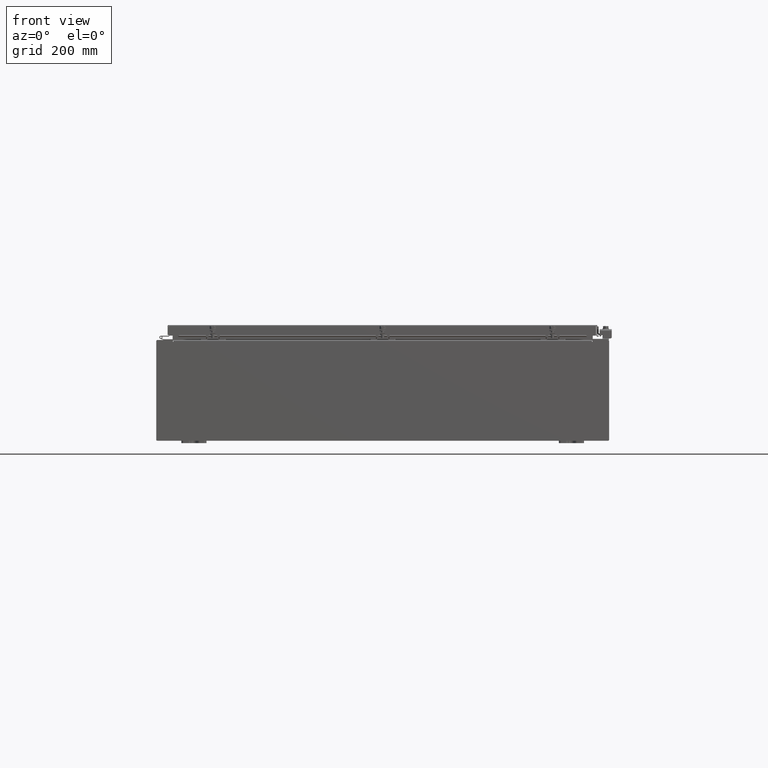
[diagram: clean part render]
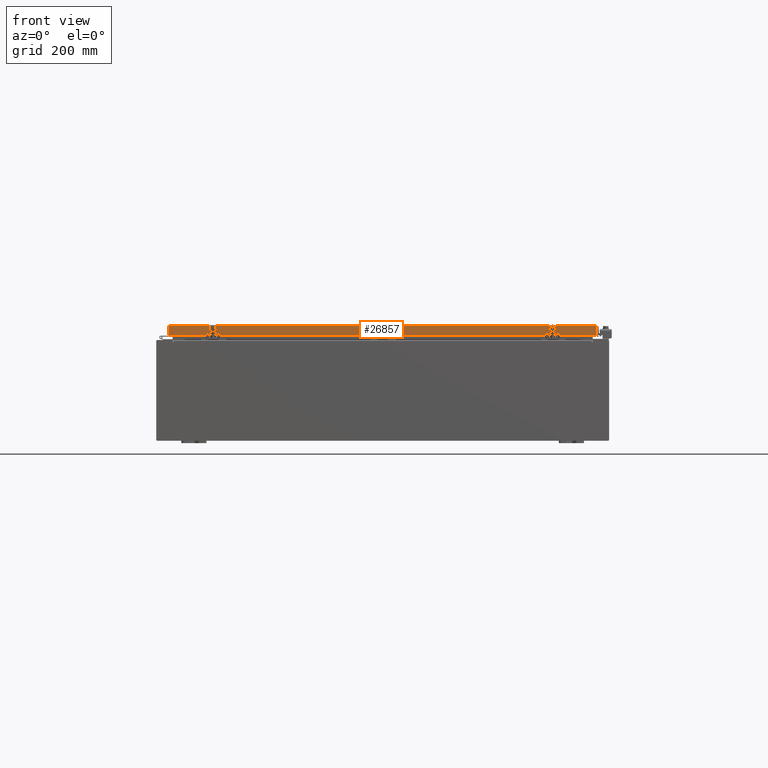
[diagram: same view with one face highlighted and labeled with its STEP entity id]
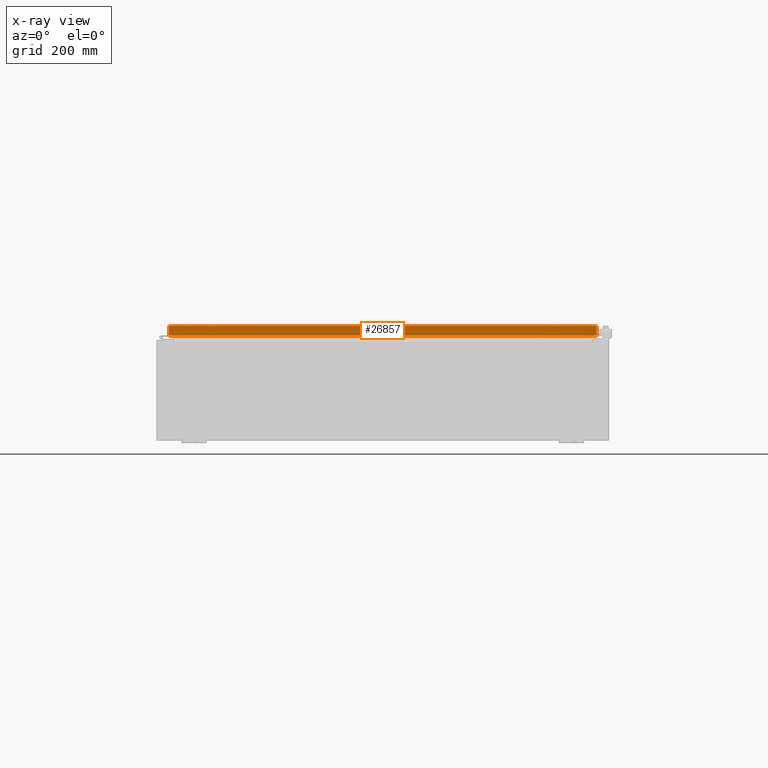
[diagram: x-ray of the same camera — body ghosted, the highlighted face saturated]
A machine part, front view. The second image highlights one B-rep face of the part: STEP entity #26857.
The next image is the same camera in x-ray: the body ghosted, the highlighted face saturated — about 0% of this face is hidden behind the body in this view.
In plain terms, the highlighted planar face has unit normal (-0, 1, -0).
Its self-contained STEP definition (entity closure, byte-faithful):
#170 = EDGE_CURVE ( 'NONE', #44706, #45521, #29061, .T. ) ;
#4046 = LINE ( 'NONE', #44004, #32891 ) ;
#6528 = CARTESIAN_POINT ( 'NONE',  ( 16.98915786437627100, -20.09400000000000100, -0.07469999999999907300 ) ) ;
#8220 = LINE ( 'NONE', #39744, #46334 ) ;
#8756 = CARTESIAN_POINT ( 'NONE',  ( -16.98915786437626700, -20.09400000000000800, -0.8499999999999955400 ) ) ;
#8834 = VECTOR ( 'NONE', #14553, 39.37007874015748100 ) ;
#9175 = CARTESIAN_POINT ( 'NONE',  ( -16.98915786437626700, -20.09400000000000100, -0.08769999999999589200 ) ) ;
#9329 = ORIENTED_EDGE ( 'NONE', *, *, #170, .F. ) ;
#10556 = VERTEX_POINT ( 'NONE', #38619 ) ;
#10958 = PLANE ( 'NONE',  #32128 ) ;
#10990 = CARTESIAN_POINT ( 'NONE',  ( 16.98915786437627100, -20.09400000000000800, -0.8499999999999999800 ) ) ;
#11208 = EDGE_LOOP ( 'NONE', ( #28838, #39534, #9329, #46235, #28802, #26408 ) ) ;
#14553 = DIRECTION ( 'NONE',  ( -0.0000000000000000000, -5.637761885544720300E-015, -1.000000000000000000 ) ) ;
#14904 = DIRECTION ( 'NONE',  ( 0.0000000000000000000, 5.637761885544720300E-015, 1.000000000000000000 ) ) ;
#15344 = DIRECTION ( 'NONE',  ( -1.000000000000000000, -8.758115402030108600E-047, 1.239713195391617400E-016 ) ) ;
#15721 = VERTEX_POINT ( 'NONE', #9175 ) ;
#15770 = CARTESIAN_POINT ( 'NONE',  ( 17.07799999999999900, -20.09400000000000100, -0.08769999999999589200 ) ) ;
#16183 = DIRECTION ( 'NONE',  ( -1.000000000000000000, 0.0000000000000000000, 0.0000000000000000000 ) ) ;
#19739 = DIRECTION ( 'NONE',  ( 1.000000000000000000, 6.989207801985715800E-031, -3.922586267643549700E-045 ) ) ;
#26122 = LINE ( 'NONE', #15770, #45832 ) ;
#26408 = ORIENTED_EDGE ( 'NONE', *, *, #47587, .F. ) ;
#26857 = ADVANCED_FACE ( 'NONE', ( #28603 ), #10958, .F. ) ;
#27497 = EDGE_CURVE ( 'NONE', #32013, #29425, #32834, .T. ) ;
#28603 = FACE_OUTER_BOUND ( 'NONE', #11208, .T. ) ;
#28802 = ORIENTED_EDGE ( 'NONE', *, *, #27497, .F. ) ;
#28838 = ORIENTED_EDGE ( 'NONE', *, *, #33913, .F. ) ;
#29061 = LINE ( 'NONE', #46036, #48717 ) ;
#29425 = VERTEX_POINT ( 'NONE', #30735 ) ;
#30573 = CARTESIAN_POINT ( 'NONE',  ( 0.0000000000000000000, -20.09400000000000100, 1.136448765364333600E-013 ) ) ;
#30735 = CARTESIAN_POINT ( 'NONE',  ( 16.23915786437626400, -20.09400000000000800, -0.8500000000000010900 ) ) ;
#32013 = VERTEX_POINT ( 'NONE', #10990 ) ;
#32128 = AXIS2_PLACEMENT_3D ( 'NONE', #30573, #38435, #14904 ) ;
#32834 = LINE ( 'NONE', #42864, #34074 ) ;
#32891 = VECTOR ( 'NONE', #47930, 39.37007874015748100 ) ;
#33913 = EDGE_CURVE ( 'NONE', #15721, #10556, #26122, .T. ) ;
#34074 = VECTOR ( 'NONE', #15344, 39.37007874015748100 ) ;
#35141 = EDGE_CURVE ( 'NONE', #29425, #44706, #8220, .T. ) ;
#38435 = DIRECTION ( 'NONE',  ( -6.989207801985715000E-031, 1.000000000000000000, -5.637761885544720300E-015 ) ) ;
#38619 = CARTESIAN_POINT ( 'NONE',  ( 16.98915786437626700, -20.09400000000000100, -0.08769999999999589200 ) ) ;
#39534 = ORIENTED_EDGE ( 'NONE', *, *, #50717, .T. ) ;
#39744 = CARTESIAN_POINT ( 'NONE',  ( 16.23915786437626700, -20.09400000000000800, -0.8500000000000010900 ) ) ;
#42078 = DIRECTION ( 'NONE',  ( -1.000000000000000000, -8.758115402030108600E-047, 1.239713195391617400E-016 ) ) ;
#42337 = CARTESIAN_POINT ( 'NONE',  ( -16.23915786437626700, -20.09400000000000800, -0.8500000000000010900 ) ) ;
#42864 = CARTESIAN_POINT ( 'NONE',  ( 17.07799999999999900, -20.09400000000000800, -0.8499999999999999800 ) ) ;
#44004 = CARTESIAN_POINT ( 'NONE',  ( -16.98915786437626700, -20.09400000000000100, 1.136448765364333600E-013 ) ) ;
#44706 = VERTEX_POINT ( 'NONE', #42337 ) ;
#45521 = VERTEX_POINT ( 'NONE', #8756 ) ;
#45832 = VECTOR ( 'NONE', #19739, 39.37007874015748100 ) ;
#46036 = CARTESIAN_POINT ( 'NONE',  ( 17.07799999999999900, -20.09400000000000800, -0.8499999999999999800 ) ) ;
#46235 = ORIENTED_EDGE ( 'NONE', *, *, #35141, .F. ) ;
#46334 = VECTOR ( 'NONE', #16183, 39.37007874015748100 ) ;
#47587 = EDGE_CURVE ( 'NONE', #10556, #32013, #49414, .T. ) ;
#47930 = DIRECTION ( 'NONE',  ( 0.0000000000000000000, -5.637761885544720300E-015, -1.000000000000000000 ) ) ;
#48717 = VECTOR ( 'NONE', #42078, 39.37007874015748100 ) ;
#49414 = LINE ( 'NONE', #6528, #8834 ) ;
#50717 = EDGE_CURVE ( 'NONE', #15721, #45521, #4046, .T. ) ;